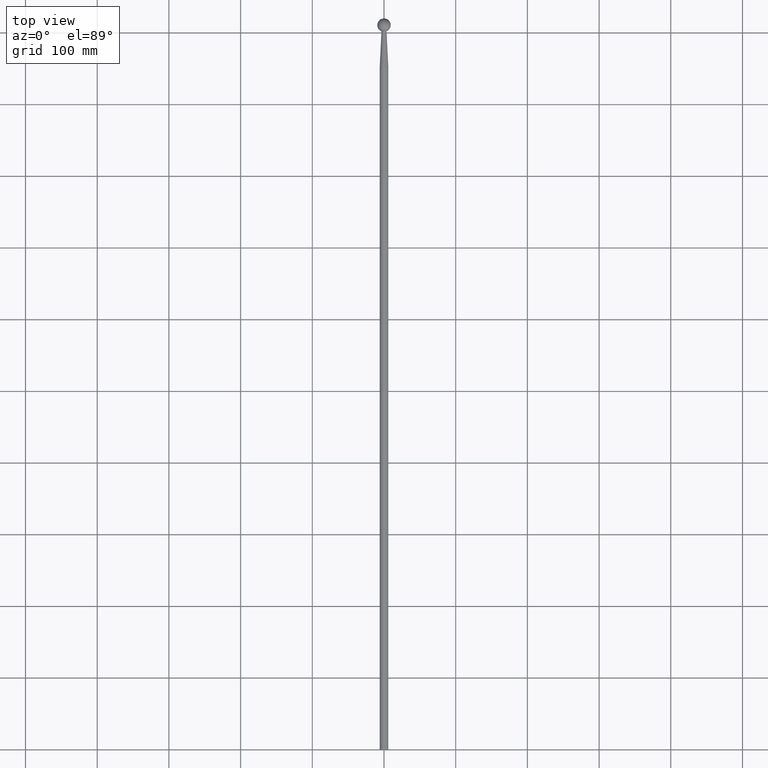
[diagram: clean part render]
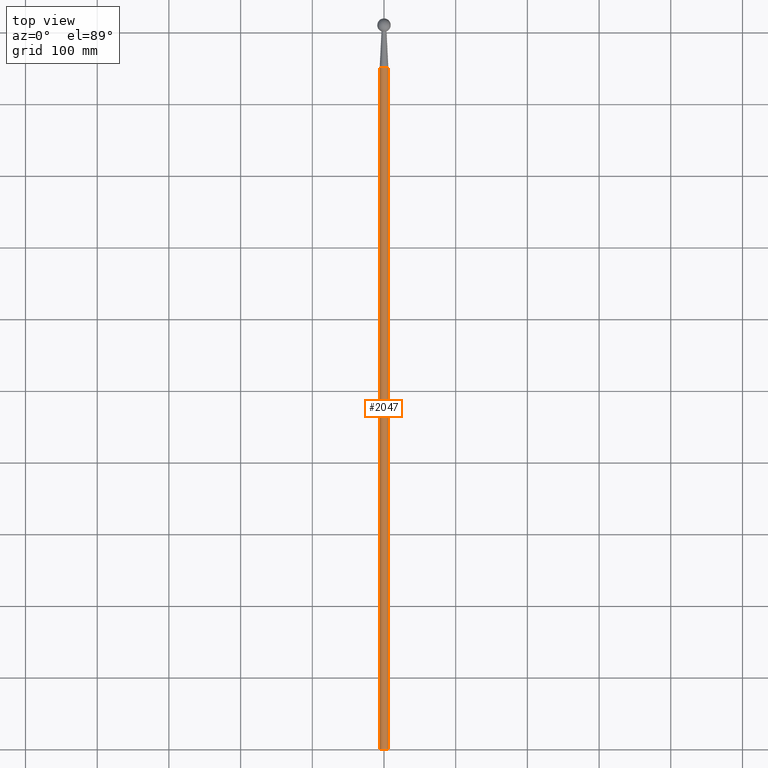
[diagram: same view with one face highlighted and labeled with its STEP entity id]
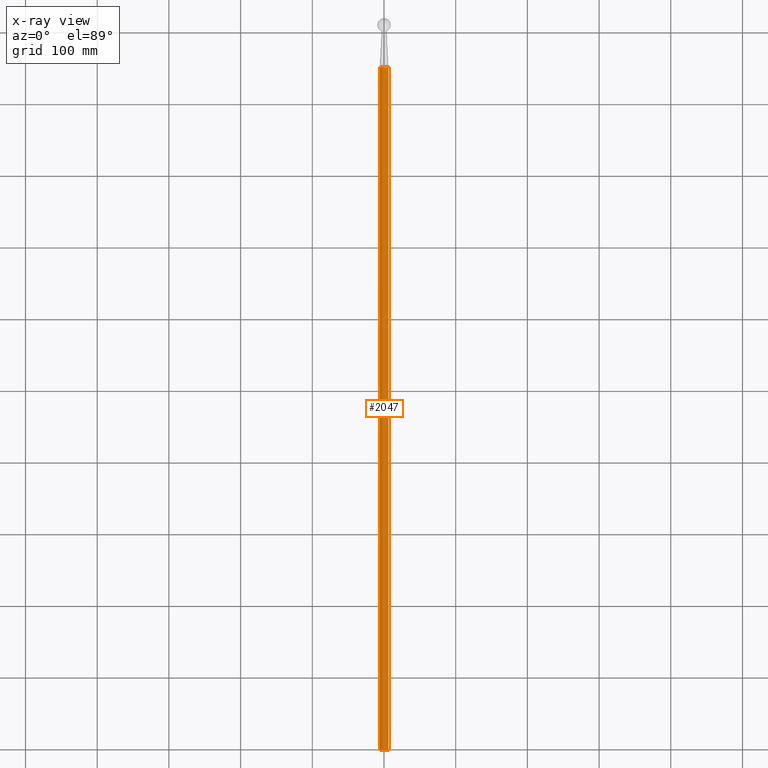
[diagram: x-ray of the same camera — body ghosted, the highlighted face saturated]
A machine part, top view. The second image highlights one B-rep face of the part: STEP entity #2047.
The next image is the same camera in x-ray: the body ghosted, the highlighted face saturated — about 0% of this face is hidden behind the body in this view.
In plain terms, the highlighted cylindrical surface (bore or boss wall) has radius 6 mm, axis along (-0, -1, -0).
Its self-contained STEP definition (entity closure, byte-faithful):
#941 = EDGE_CURVE ( 'NONE', #7655, #7655, #3023, .T. ) ;
#2047 = ADVANCED_FACE ( 'NONE', ( #9491, #6907 ), #8669, .T. ) ;
#2181 = DIRECTION ( 'NONE',  ( 0.000000000000000000, 0.000000000000000000, -1.000000000000000000 ) ) ;
#2301 = DIRECTION ( 'NONE',  ( -0.000000000000000000, -1.000000000000000000, -0.000000000000000000 ) ) ;
#2459 = CARTESIAN_POINT ( 'NONE',  ( 0.000000000000000000, 0.000000000000000000, -6.000000000000000000 ) ) ;
#3023 = CIRCLE ( 'NONE', #4831, 6.000000000000000000 ) ;
#3366 = DIRECTION ( 'NONE',  ( -0.000000000000000000, -1.000000000000000000, -0.000000000000000000 ) ) ;
#3824 = AXIS2_PLACEMENT_3D ( 'NONE', #7584, #2301, #5048 ) ;
#4165 = CARTESIAN_POINT ( 'NONE',  ( 0.000000000000000000, 0.000000000000000000, 0.000000000000000000 ) ) ;
#4206 = EDGE_CURVE ( 'NONE', #4695, #4695, #7988, .T. ) ;
#4695 = VERTEX_POINT ( 'NONE', #9377 ) ;
#4831 = AXIS2_PLACEMENT_3D ( 'NONE', #4165, #3366, #8464 ) ;
#4956 = ORIENTED_EDGE ( 'NONE', *, *, #4206, .T. ) ;
#5048 = DIRECTION ( 'NONE',  ( 0.000000000000000000, 0.000000000000000000, -1.000000000000000000 ) ) ;
#6907 = FACE_OUTER_BOUND ( 'NONE', #9037, .T. ) ;
#7584 = CARTESIAN_POINT ( 'NONE',  ( 0.000000000000000000, 0.000000000000000000, 0.000000000000000000 ) ) ;
#7655 = VERTEX_POINT ( 'NONE', #2459 ) ;
#7806 = AXIS2_PLACEMENT_3D ( 'NONE', #9899, #8309, #2181 ) ;
#7988 = CIRCLE ( 'NONE', #7806, 6.000000000000000000 ) ;
#8049 = EDGE_LOOP ( 'NONE', ( #4956 ) ) ;
#8123 = ORIENTED_EDGE ( 'NONE', *, *, #941, .F. ) ;
#8309 = DIRECTION ( 'NONE',  ( -0.000000000000000000, -1.000000000000000000, -0.000000000000000000 ) ) ;
#8464 = DIRECTION ( 'NONE',  ( 0.000000000000000000, 0.000000000000000000, -1.000000000000000000 ) ) ;
#8669 = CYLINDRICAL_SURFACE ( 'NONE', #3824, 6.000000000000000000 ) ;
#9037 = EDGE_LOOP ( 'NONE', ( #8123 ) ) ;
#9377 = CARTESIAN_POINT ( 'NONE',  ( 0.000000000000000000, 951.6682391336719320, -6.000000000000000000 ) ) ;
#9491 = FACE_OUTER_BOUND ( 'NONE', #8049, .T. ) ;
#9899 = CARTESIAN_POINT ( 'NONE',  ( 0.000000000000000000, 951.6682391336719320, 0.000000000000000000 ) ) ;